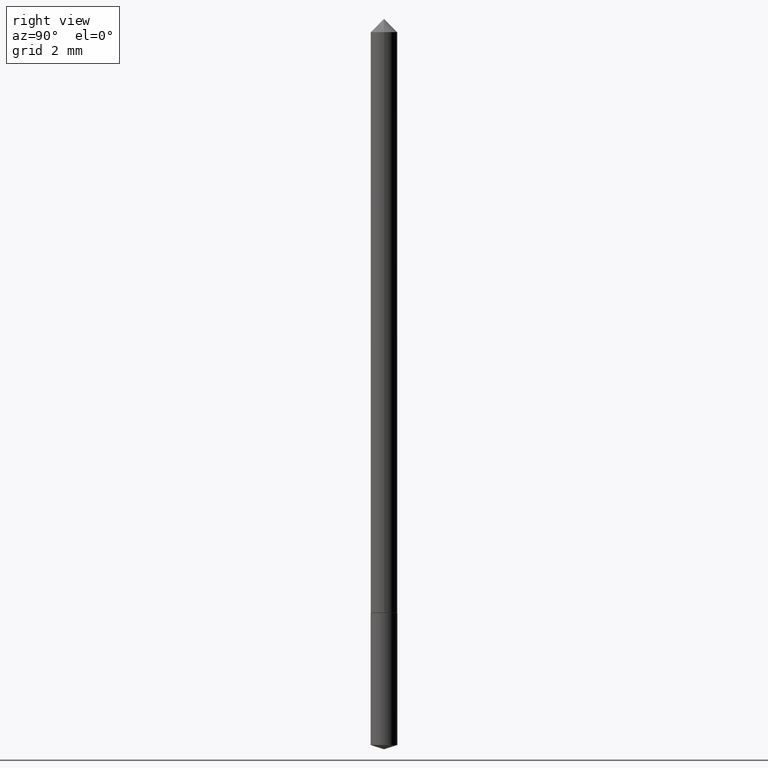
[diagram: clean part render]
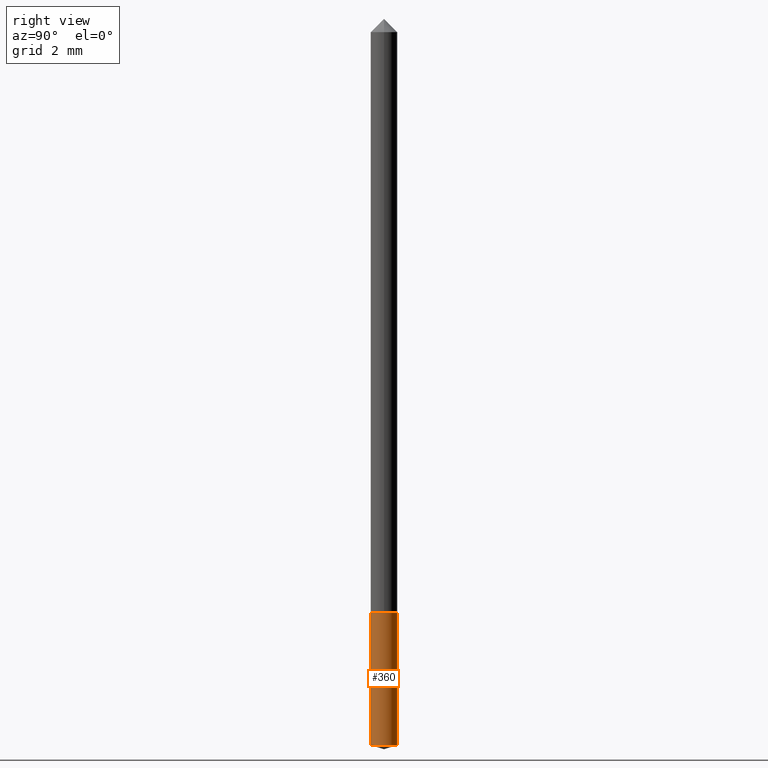
[diagram: same view with one face highlighted and labeled with its STEP entity id]
A machine part, right view. The second image highlights one B-rep face of the part: STEP entity #360.
In plain terms, the highlighted cylindrical surface (edge-blend (fillet) strip) has radius 0.4496 mm, axis along (-0, 0, 1).
Its self-contained STEP definition (entity closure, byte-faithful):
#14 = AXIS2_PLACEMENT_3D ( 'NONE', #193, #34, #134 ) ;
#23 = EDGE_CURVE ( 'NONE', #329, #187, #345, .T. ) ;
#30 = EDGE_CURVE ( 'NONE', #187, #43, #208, .T. ) ;
#34 = DIRECTION ( 'NONE',  ( -2.445519838104881031E-29, 3.491408258229514886E-15, 1.000000000000000000 ) ) ;
#39 = VERTEX_POINT ( 'NONE', #304 ) ;
#43 = VERTEX_POINT ( 'NONE', #300 ) ;
#61 = ORIENTED_EDGE ( 'NONE', *, *, #149, .T. ) ;
#72 = DIRECTION ( 'NONE',  ( -2.445519838104881031E-29, 3.491408258229514886E-15, 1.000000000000000000 ) ) ;
#75 = ORIENTED_EDGE ( 'NONE', *, *, #148, .T. ) ;
#77 = CARTESIAN_POINT ( 'NONE',  ( -1.235984393950272671E-16, -0.01770000000000280377, -0.8031999999999999140 ) ) ;
#107 = CARTESIAN_POINT ( 'NONE',  ( 1.257660642295573590E-16, 0.01769999999999719714, -0.8031999999999999140 ) ) ;
#132 = LINE ( 'NONE', #107, #143 ) ;
#134 = DIRECTION ( 'NONE',  ( -6.982962677686265133E-15, -1.000000000000000000, 0.000000000000000000 ) ) ;
#138 = FACE_OUTER_BOUND ( 'NONE', #155, .T. ) ;
#142 = DIRECTION ( 'NONE',  ( -6.982962677686265133E-15, -1.000000000000000000, 0.000000000000000000 ) ) ;
#143 = VECTOR ( 'NONE', #281, 39.37007874015748143 ) ;
#148 = EDGE_CURVE ( 'NONE', #329, #39, #305, .T. ) ;
#149 = EDGE_CURVE ( 'NONE', #39, #43, #132, .T. ) ;
#155 = EDGE_LOOP ( 'NONE', ( #75, #61, #245, #358 ) ) ;
#167 = CARTESIAN_POINT ( 'NONE',  ( 2.393436258665223768E-29, -3.417167035647336902E-15, -0.9787192114368419293 ) ) ;
#185 = DIRECTION ( 'NONE',  ( -6.982962677686265133E-15, -1.000000000000000000, 0.000000000000000000 ) ) ;
#187 = VERTEX_POINT ( 'NONE', #77 ) ;
#191 = AXIS2_PLACEMENT_3D ( 'NONE', #167, #280, #142 ) ;
#193 = CARTESIAN_POINT ( 'NONE',  ( 1.964200545127901750E-29, -2.804357811358814562E-15, -0.8031999999999999140 ) ) ;
#208 = CIRCLE ( 'NONE', #14, 0.01770000000000000046 ) ;
#233 = DIRECTION ( 'NONE',  ( -2.445519838104881312E-29, 3.491408258229515280E-15, 1.000000000000000000 ) ) ;
#245 = ORIENTED_EDGE ( 'NONE', *, *, #30, .F. ) ;
#273 = CYLINDRICAL_SURFACE ( 'NONE', #307, 0.01770000000000000046 ) ;
#280 = DIRECTION ( 'NONE',  ( -2.445519838104881031E-29, 3.491408258229514886E-15, 1.000000000000000000 ) ) ;
#281 = DIRECTION ( 'NONE',  ( -2.445519838104881312E-29, 3.491408258229515280E-15, 1.000000000000000000 ) ) ;
#290 = CARTESIAN_POINT ( 'NONE',  ( -1.235984393950229777E-16, -0.01770000000000341786, -0.9787192114368419293 ) ) ;
#300 = CARTESIAN_POINT ( 'NONE',  ( 1.257660642295616978E-16, 0.01769999999999719714, -0.8031999999999999140 ) ) ;
#304 = CARTESIAN_POINT ( 'NONE',  ( 1.257660642295616485E-16, 0.01769999999999658305, -0.9787192114368419293 ) ) ;
#305 = CIRCLE ( 'NONE', #191, 0.01770000000000000046 ) ;
#307 = AXIS2_PLACEMENT_3D ( 'NONE', #351, #72, #185 ) ;
#312 = CARTESIAN_POINT ( 'NONE',  ( -1.235984393950272671E-16, -0.01770000000000280377, -0.8031999999999999140 ) ) ;
#326 = VECTOR ( 'NONE', #233, 39.37007874015748143 ) ;
#329 = VERTEX_POINT ( 'NONE', #290 ) ;
#345 = LINE ( 'NONE', #312, #326 ) ;
#351 = CARTESIAN_POINT ( 'NONE',  ( 1.964200545127901750E-29, -2.804357811358814562E-15, -0.8031999999999999140 ) ) ;
#358 = ORIENTED_EDGE ( 'NONE', *, *, #23, .F. ) ;
#360 = ADVANCED_FACE ( 'NONE', ( #138 ), #273, .T. ) ;